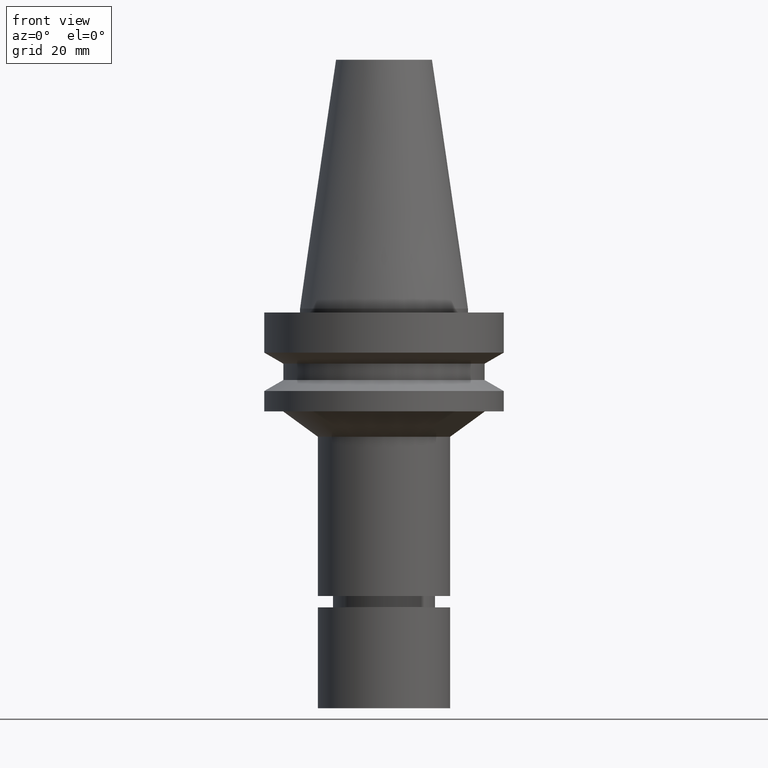
[diagram: clean part render]
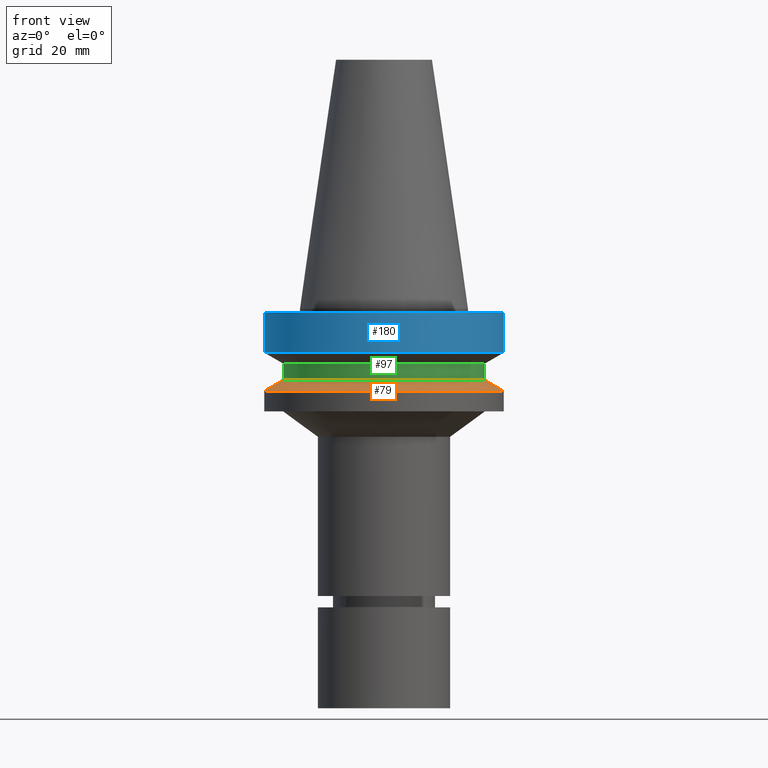
[diagram: same view with three faces highlighted in distinct colors, each labeled with its STEP entity id]
A machine part, front view with three faces highlighted in distinct colors.
Their STEP definitions:

[orange] entity #79 — the highlighted conical surface has half-angle 60 deg.
#79=ADVANCED_FACE('Unnamed[1]',(#207,#208),#209,.T.);
#152=EDGE_CURVE('Unnamed[1]',#319,#319,#320,.T.);
#174=EDGE_CURVE('Unnamed[1]',#354,#354,#355,.T.);
#207=FACE_BOUND('',#384,.T.);
#208=FACE_BOUND('',#385,.T.);
#209=CONICAL_SURFACE('',#386,29.0000000000003,1.04719755119651);
#319=VERTEX_POINT('',#524);
#320=CIRCLE('',#525,26.5);
#354=VERTEX_POINT('',#568);
#355=CIRCLE('',#569,31.5000000000006);
#384=EDGE_LOOP('',(#587));
#385=EDGE_LOOP('',(#588));
#386=AXIS2_PLACEMENT_3D('',#589,#590,#591);
#524=CARTESIAN_POINT('',(1.1479681728942E-015,26.5,-18.7477430013855));
#525=AXIS2_PLACEMENT_3D('',#712,#713,#714);
#568=CARTESIAN_POINT('',(1.32473071268174E-015,31.5000000000007,-21.6344943473346));
#569=AXIS2_PLACEMENT_3D('',#751,#752,#753);
#587=ORIENTED_EDGE('',*,*,#174,.F.);
#588=ORIENTED_EDGE('',*,*,#152,.T.);
#589=CARTESIAN_POINT('',(1.23634944278797E-015,6.58029525237841E-014,-20.1911186743601));
#590=DIRECTION('',(6.12323399573677E-017,-1.31253561610805E-016,-1.0));
#591=DIRECTION('',(3.20980997440445E-033,1.0,-1.31253561610805E-016));
#712=CARTESIAN_POINT('',(1.1479681728942E-015,6.59924007216045E-014,-18.7477430013855));
#713=DIRECTION('',(6.12323399573677E-017,-1.3125356161087E-016,-1.0));
#714=DIRECTION('',(3.20980997440659E-033,1.0,-1.3125356161087E-016));
#751=CARTESIAN_POINT('',(1.32473071268174E-015,6.56135043259637E-014,-21.6344943473346));
#752=DIRECTION('',(6.12323399573677E-017,-1.31253561610751E-016,-1.0));
#753=DIRECTION('',(3.20980997439126E-033,1.0,-1.31253561610751E-016));

[blue] entity #180 — the highlighted cylindrical surface (bore or boss wall) has radius 31.5 mm, axis along (0, -0, -1).
#120=EDGE_CURVE('Unnamed[1]',#273,#273,#274,.T.);
#169=EDGE_CURVE('Unnamed[1]',#346,#346,#347,.T.);
#180=ADVANCED_FACE('Unnamed[1]',(#361,#362),#363,.T.);
#273=VERTEX_POINT('',#466);
#274=CIRCLE('',#467,31.5000000000003);
#346=VERTEX_POINT('',#558);
#347=CIRCLE('',#559,31.4999999999996);
#361=FACE_BOUND('',#576,.T.);
#362=FACE_BOUND('',#577,.T.);
#363=CYLINDRICAL_SURFACE('',#578,31.5);
#466=CARTESIAN_POINT('',(7.08182973902924E-016,31.5000000000004,-11.5655056526664));
#467=AXIS2_PLACEMENT_3D('',#663,#664,#665);
#558=CARTESIAN_POINT('',(6.12323399573568E-017,31.4999999999997,-0.999999999999825));
#559=AXIS2_PLACEMENT_3D('',#742,#743,#744);
#576=EDGE_LOOP('',(#756));
#577=EDGE_LOOP('',(#757));
#578=AXIS2_PLACEMENT_3D('',#758,#759,#760);
#663=CARTESIAN_POINT('',(7.08182973902923E-016,6.69350949539583E-014,-11.5655056526663));
#664=DIRECTION('',(6.12323399573677E-017,-1.31253561610752E-016,-1.0));
#665=DIRECTION('',(3.2098099743913E-033,1.0,-1.31253561610752E-016));
#742=CARTESIAN_POINT('',(6.12323399573563E-017,6.83218552010903E-014,-0.999999999999815));
#743=DIRECTION('',(6.12323399573677E-017,-1.31253561610755E-016,-1.0));
#744=DIRECTION('',(3.20980997439137E-033,1.0,-1.31253561610755E-016));
#756=ORIENTED_EDGE('',*,*,#120,.F.);
#757=ORIENTED_EDGE('',*,*,#169,.T.);
#758=CARTESIAN_POINT('',(3.8470765693014E-016,6.76284750775243E-014,-6.28275282633308));
#759=DIRECTION('',(6.12323399573677E-017,-1.31253561610753E-016,-1.0));
#760=DIRECTION('',(3.20980997439133E-033,1.0,-1.31253561610753E-016));

[green] entity #97 — the highlighted cylindrical surface (bore or boss wall) has radius 26.5 mm, axis along (0, -0, -1).
#97=ADVANCED_FACE('Unnamed[1]',(#235,#236),#237,.T.);
#137=EDGE_CURVE('Unnamed[1]',#298,#298,#299,.T.);
#152=EDGE_CURVE('Unnamed[1]',#319,#319,#320,.T.);
#235=FACE_BOUND('',#419,.T.);
#236=FACE_BOUND('',#420,.T.);
#237=CYLINDRICAL_SURFACE('',#421,26.4999999999997);
#298=VERTEX_POINT('',#498);
#299=CIRCLE('',#499,26.4999999999994);
#319=VERTEX_POINT('',#524);
#320=CIRCLE('',#525,26.5);
#419=EDGE_LOOP('',(#619));
#420=EDGE_LOOP('',(#620));
#421=AXIS2_PLACEMENT_3D('',#621,#622,#623);
#498=CARTESIAN_POINT('',(8.8494551369045E-016,26.4999999999995,-14.4522569986152));
#499=AXIS2_PLACEMENT_3D('',#691,#692,#693);
#524=CARTESIAN_POINT('',(1.1479681728942E-015,26.5,-18.7477430013855));
#525=AXIS2_PLACEMENT_3D('',#712,#713,#714);
#619=ORIENTED_EDGE('',*,*,#152,.F.);
#620=ORIENTED_EDGE('',*,*,#137,.T.);
#621=CARTESIAN_POINT('',(1.01645684329232E-015,6.6274299639961E-014,-16.6000000000004));
#622=DIRECTION('',(6.12323399573676E-017,-1.31253561610871E-016,-1.0));
#623=DIRECTION('',(3.20980997440663E-033,1.0,-1.31253561610871E-016));
#691=CARTESIAN_POINT('',(8.8494551369045E-016,6.65561985583176E-014,-14.4522569986152));
#692=DIRECTION('',(6.12323399573677E-017,-1.31253561610872E-016,-1.0));
#693=DIRECTION('',(3.20980997440666E-033,1.0,-1.31253561610872E-016));
#712=CARTESIAN_POINT('',(1.1479681728942E-015,6.59924007216045E-014,-18.7477430013855));
#713=DIRECTION('',(6.12323399573677E-017,-1.3125356161087E-016,-1.0));
#714=DIRECTION('',(3.20980997440659E-033,1.0,-1.3125356161087E-016));